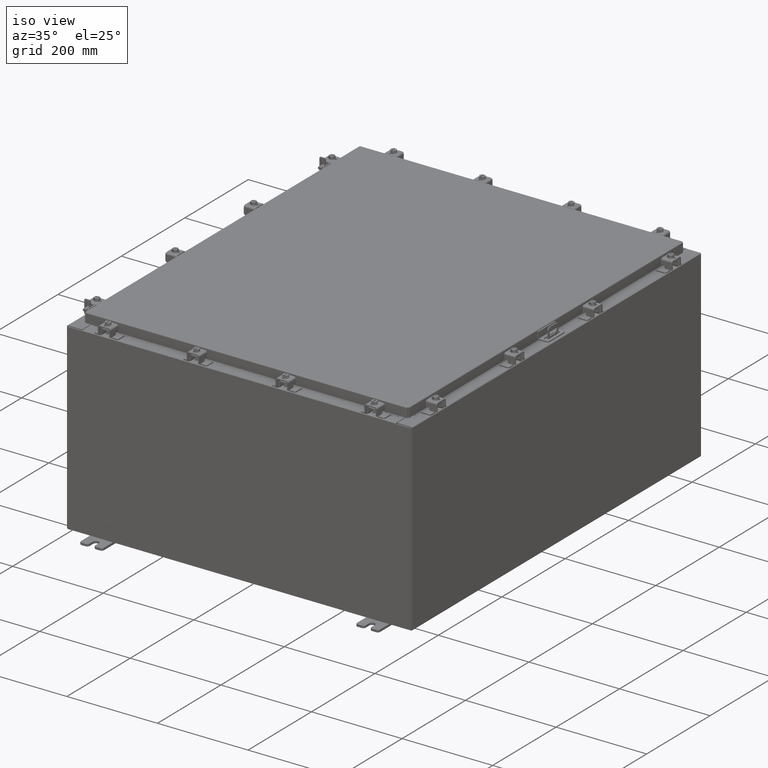
[diagram: clean part render]
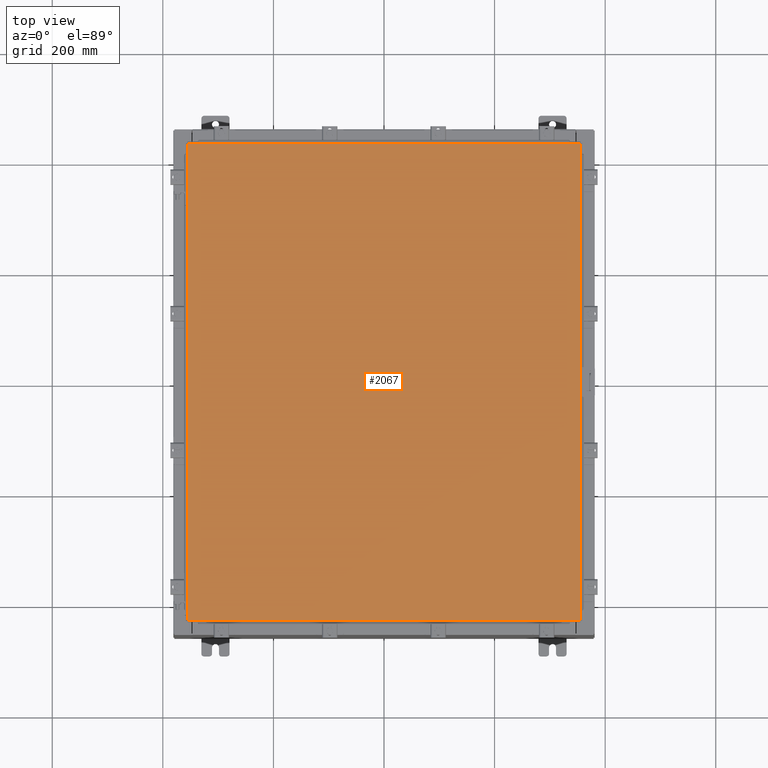
[diagram: tour spotlight — one face highlighted and labeled with its STEP entity id]
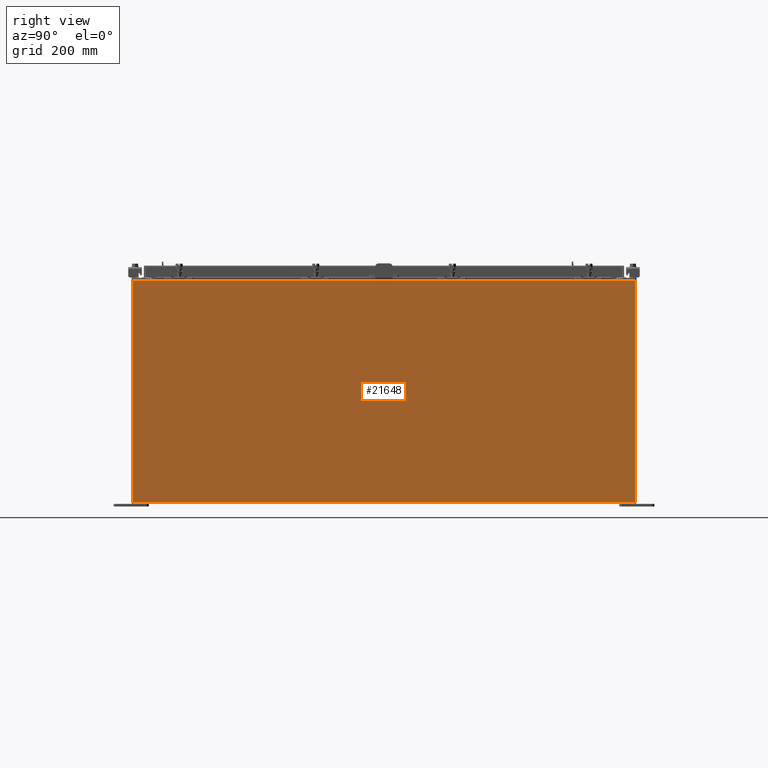
[diagram: tour spotlight — one face highlighted and labeled with its STEP entity id]
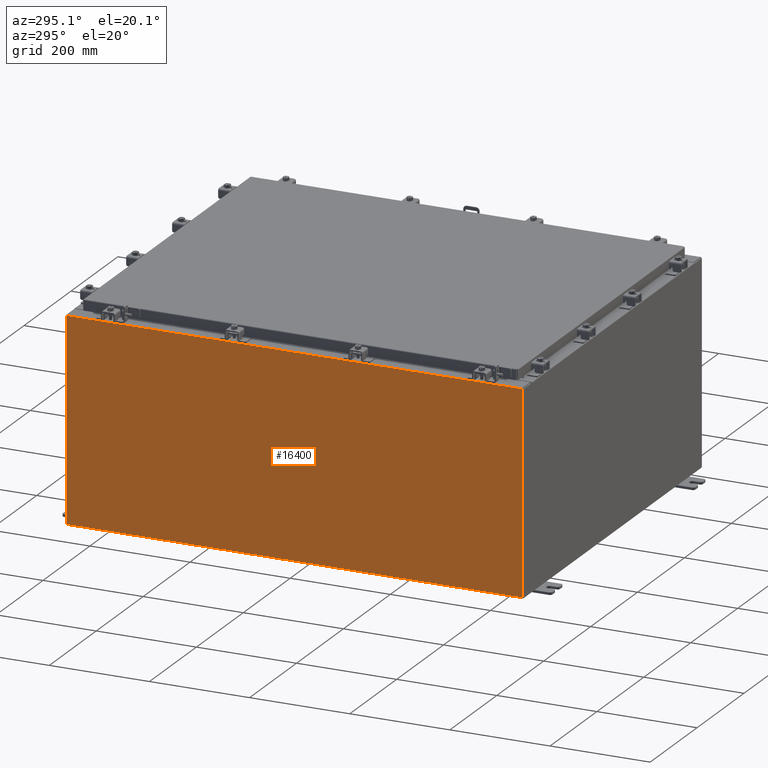
[diagram: tour spotlight — one face highlighted and labeled with its STEP entity id]
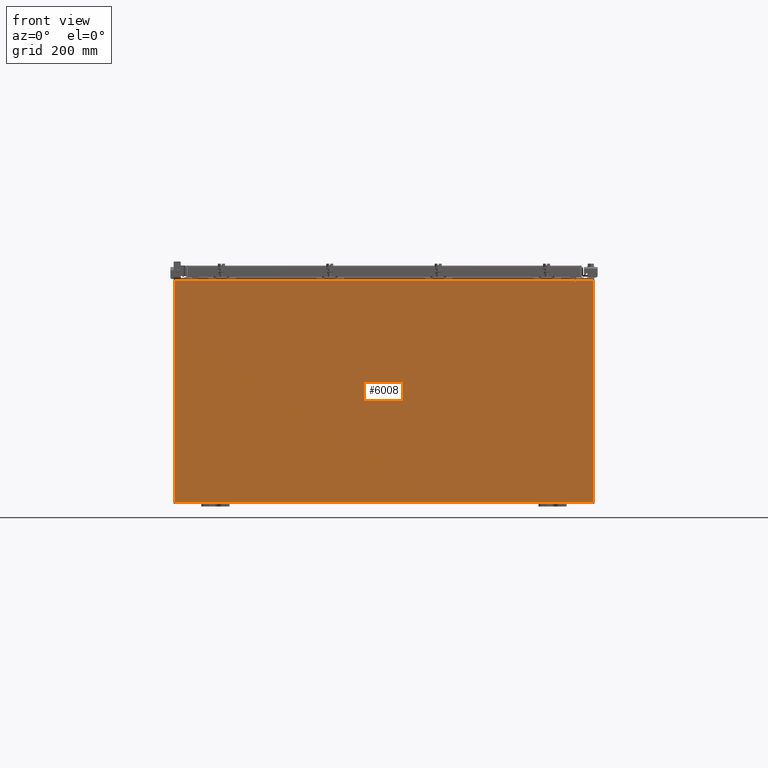
[diagram: tour spotlight — one face highlighted and labeled with its STEP entity id]
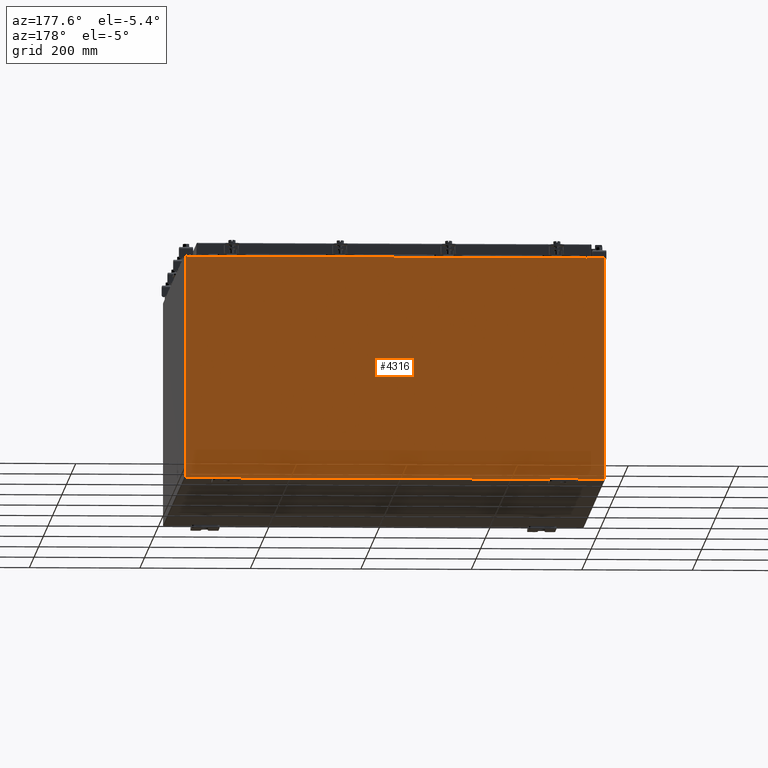
[diagram: tour spotlight — one face highlighted and labeled with its STEP entity id]
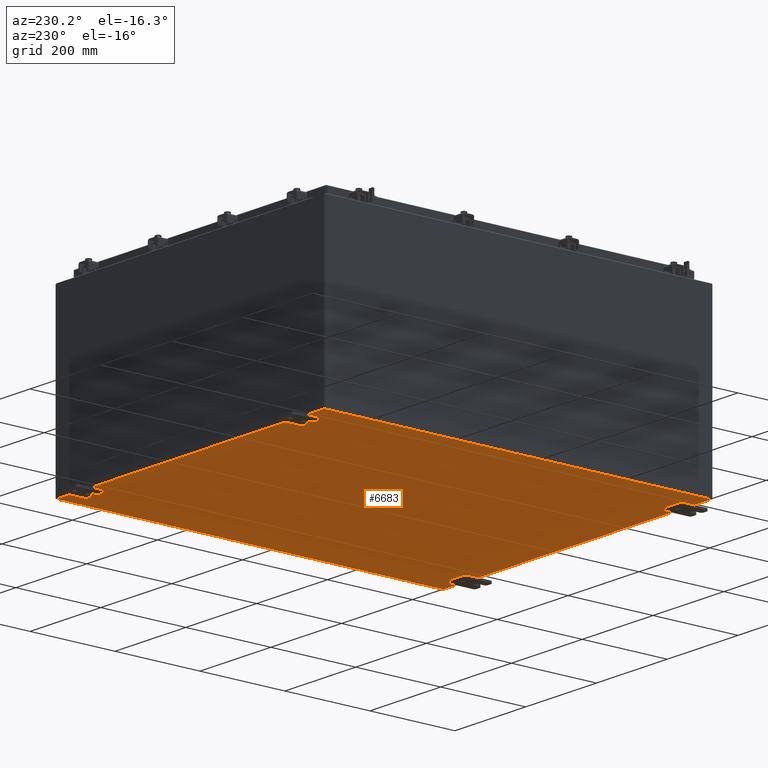
[diagram: tour spotlight — one face highlighted and labeled with its STEP entity id]
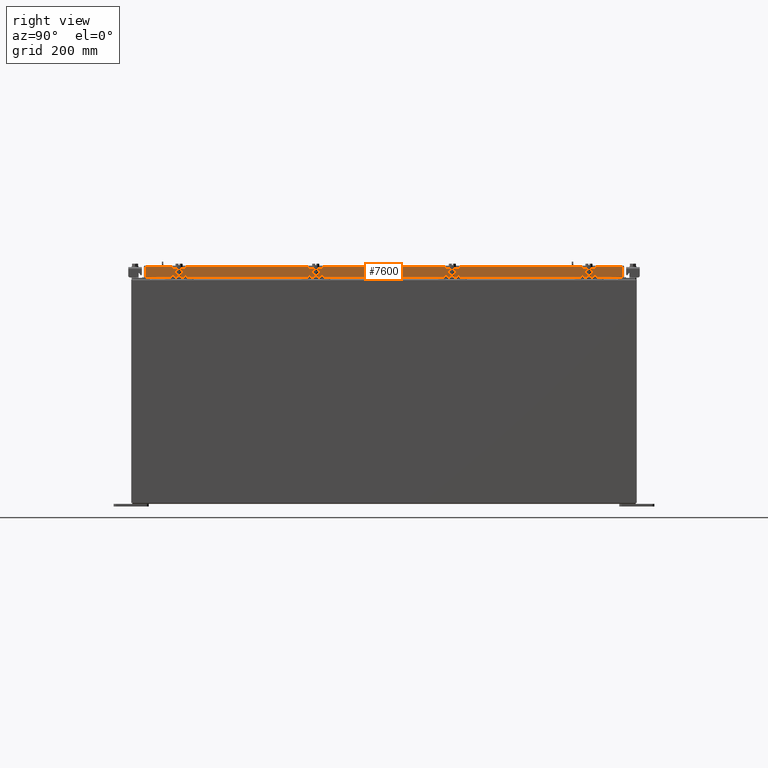
[diagram: tour spotlight — one face highlighted and labeled with its STEP entity id]
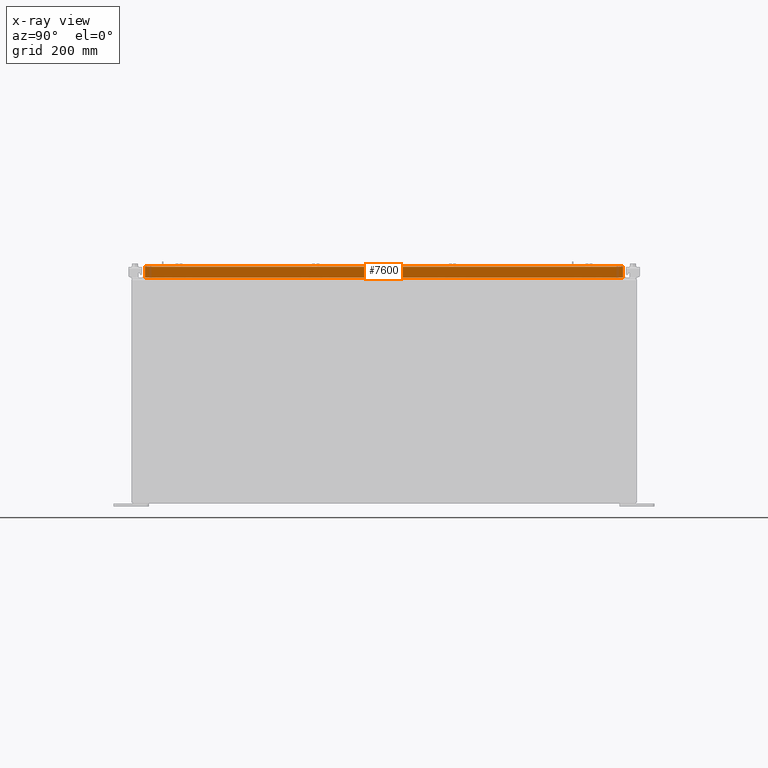
[diagram: x-ray of the same camera — body ghosted, this tour face saturated]
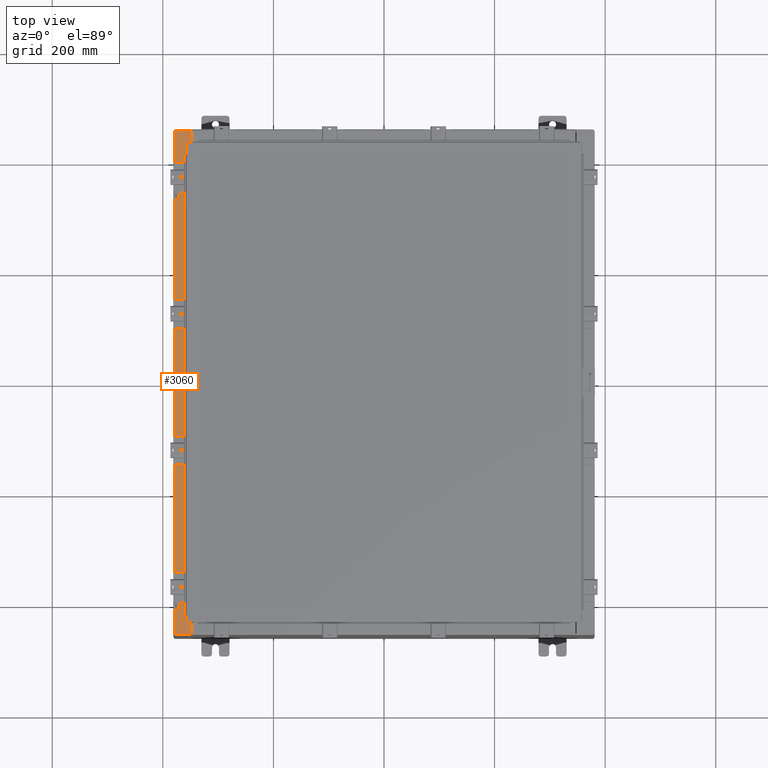
[diagram: tour spotlight — one face highlighted and labeled with its STEP entity id]
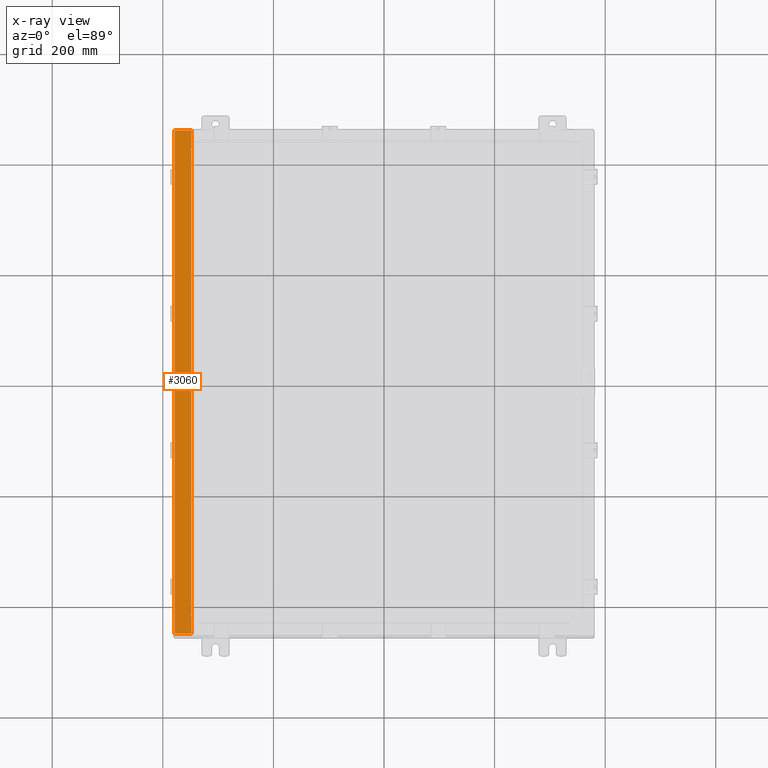
[diagram: x-ray of the same camera — body ghosted, this tour face saturated]
A machine part: a face-by-face anatomy tour. The part has 2594 B-rep faces; the first image is the clean iso view, then the 8 largest visible faces are spotlighted one at a time (largest first), each with its STEP entity span.

Face 1 — top view, entity #2067. In plain terms, the highlighted planar face has unit normal (0, 0, -1).
Definition (entity closure, byte-faithful):
#553 = VECTOR ( 'NONE', #9940, 39.37007874015748100 ) ;
#727 = CARTESIAN_POINT ( 'NONE',  ( 13.99029999999999600, 17.00629999999999600, 8.878505979408856000E-016 ) ) ;
#847 = CARTESIAN_POINT ( 'NONE',  ( 13.99029999999999800, -17.00630000000000700, -2.048885995248197400E-016 ) ) ;
#868 = DIRECTION ( 'NONE',  ( 1.000000000000000000, -0.0000000000000000000, -0.0000000000000000000 ) ) ;
#902 = EDGE_CURVE ( 'NONE', #20600, #9590, #1077, .T. ) ;
#1077 = LINE ( 'NONE', #15552, #20581 ) ;
#1208 = DIRECTION ( 'NONE',  ( 0.0000000000000000000, 0.0000000000000000000, -1.000000000000000000 ) ) ;
#2067 = ADVANCED_FACE ( 'NONE', ( #10502 ), #3058, .F. ) ;
#3058 = PLANE ( 'NONE',  #16236 ) ;
#3523 = ORIENTED_EDGE ( 'NONE', *, *, #9617, .T. ) ;
#5127 = VECTOR ( 'NONE', #868, 39.37007874015748100 ) ;
#8038 = CARTESIAN_POINT ( 'NONE',  ( -13.99030000000000000, 17.00630000000000000, -2.048885995248197400E-016 ) ) ;
#9590 = VERTEX_POINT ( 'NONE', #15628 ) ;
#9617 = EDGE_CURVE ( 'NONE', #9590, #20401, #9937, .T. ) ;
#9937 = LINE ( 'NONE', #727, #19976 ) ;
#9940 = DIRECTION ( 'NONE',  ( 0.0000000000000000000, -1.000000000000000000, 0.0000000000000000000 ) ) ;
#10502 = FACE_OUTER_BOUND ( 'NONE', #12484, .T. ) ;
#10601 = LINE ( 'NONE', #8038, #553 ) ;
#12097 = EDGE_CURVE ( 'NONE', #20701, #20600, #15129, .T. ) ;
#12292 = ORIENTED_EDGE ( 'NONE', *, *, #902, .T. ) ;
#12484 = EDGE_LOOP ( 'NONE', ( #16515, #12292, #3523, #13107 ) ) ;
#12510 = CARTESIAN_POINT ( 'NONE',  ( 0.0000000000000000000, 0.0000000000000000000, 0.0000000000000000000 ) ) ;
#13107 = ORIENTED_EDGE ( 'NONE', *, *, #22933, .T. ) ;
#14417 = DIRECTION ( 'NONE',  ( -1.000000000000000000, 0.0000000000000000000, -0.0000000000000000000 ) ) ;
#15129 = LINE ( 'NONE', #21602, #5127 ) ;
#15552 = CARTESIAN_POINT ( 'NONE',  ( 13.99029999999999800, -17.00630000000000700, -2.048885995248197400E-016 ) ) ;
#15628 = CARTESIAN_POINT ( 'NONE',  ( 13.99029999999999600, 17.00629999999999600, 8.878505979408856000E-016 ) ) ;
#16236 = AXIS2_PLACEMENT_3D ( 'NONE', #12510, #1208, #14417 ) ;
#16515 = ORIENTED_EDGE ( 'NONE', *, *, #12097, .T. ) ;
#19557 = DIRECTION ( 'NONE',  ( -1.000000000000000000, -0.0000000000000000000, -0.0000000000000000000 ) ) ;
#19976 = VECTOR ( 'NONE', #19557, 39.37007874015748100 ) ;
#20401 = VERTEX_POINT ( 'NONE', #21106 ) ;
#20581 = VECTOR ( 'NONE', #23724, 39.37007874015748100 ) ;
#20600 = VERTEX_POINT ( 'NONE', #847 ) ;
#20701 = VERTEX_POINT ( 'NONE', #23767 ) ;
#21106 = CARTESIAN_POINT ( 'NONE',  ( -13.99030000000000000, 17.00630000000000000, -2.048885995248197400E-016 ) ) ;
#21602 = CARTESIAN_POINT ( 'NONE',  ( -13.99029999999999800, -17.00630000000000300, -2.048885995248197400E-016 ) ) ;
#22933 = EDGE_CURVE ( 'NONE', #20401, #20701, #10601, .T. ) ;
#23724 = DIRECTION ( 'NONE',  ( 0.0000000000000000000, 1.000000000000000000, 0.0000000000000000000 ) ) ;
#23767 = CARTESIAN_POINT ( 'NONE',  ( -13.99029999999999800, -17.00630000000000300, -2.048885995248197400E-016 ) ) ;

Face 2 — right view, entity #21648. In plain terms, the highlighted planar face has unit normal (-1, 0, 0).
Definition (entity closure, byte-faithful):
#1788 = VERTEX_POINT ( 'NONE', #2061 ) ;
#1978 = CARTESIAN_POINT ( 'NONE',  ( 15.00000000000005300, 17.92530000000000000, 15.83759999999998600 ) ) ;
#2061 = CARTESIAN_POINT ( 'NONE',  ( 14.99999999999999800, -17.92530000000000000, 0.01300000000000023200 ) ) ;
#3787 = EDGE_CURVE ( 'NONE', #20993, #1788, #13075, .T. ) ;
#5161 = EDGE_CURVE ( 'NONE', #20360, #13152, #7692, .T. ) ;
#5344 = CARTESIAN_POINT ( 'NONE',  ( 14.99999999999999800, -17.92530000000000000, 0.01299999999999984700 ) ) ;
#5392 = ORIENTED_EDGE ( 'NONE', *, *, #3787, .T. ) ;
#5623 = VECTOR ( 'NONE', #7126, 39.37007874015748100 ) ;
#5708 = CARTESIAN_POINT ( 'NONE',  ( 14.99999999999999800, 0.0000000000000000000, -5.172322868739428200E-014 ) ) ;
#7126 = DIRECTION ( 'NONE',  ( 2.091457255054409500E-031, -1.000000000000000000, 6.096072018129156600E-017 ) ) ;
#7692 = LINE ( 'NONE', #20156, #17135 ) ;
#8018 = EDGE_LOOP ( 'NONE', ( #13876, #5392, #19583, #19571 ) ) ;
#9200 = FACE_OUTER_BOUND ( 'NONE', #8018, .T. ) ;
#9495 = PLANE ( 'NONE',  #10987 ) ;
#10032 = LINE ( 'NONE', #5344, #5623 ) ;
#10987 = AXIS2_PLACEMENT_3D ( 'NONE', #5708, #22698, #11367 ) ;
#11317 = CARTESIAN_POINT ( 'NONE',  ( 15.00000000000005300, -17.92530000000000000, 15.83760000000000000 ) ) ;
#11367 = DIRECTION ( 'NONE',  ( 3.430827668758846700E-015, 0.0000000000000000000, 1.000000000000000000 ) ) ;
#12648 = DIRECTION ( 'NONE',  ( -0.0000000000000000000, -1.000000000000000000, -0.0000000000000000000 ) ) ;
#13075 = LINE ( 'NONE', #20966, #17506 ) ;
#13152 = VERTEX_POINT ( 'NONE', #1978 ) ;
#13456 = DIRECTION ( 'NONE',  ( -3.430827668758847500E-015, 0.0000000000000000000, -1.000000000000000000 ) ) ;
#13876 = ORIENTED_EDGE ( 'NONE', *, *, #22138, .T. ) ;
#15340 = VECTOR ( 'NONE', #12648, 39.37007874015748100 ) ;
#15933 = LINE ( 'NONE', #24022, #15340 ) ;
#17135 = VECTOR ( 'NONE', #18256, 39.37007874015748100 ) ;
#17506 = VECTOR ( 'NONE', #13456, 39.37007874015748100 ) ;
#18041 = EDGE_CURVE ( 'NONE', #20360, #1788, #10032, .T. ) ;
#18256 = DIRECTION ( 'NONE',  ( 3.430827668758847500E-015, -1.372331067503538800E-016, 1.000000000000000000 ) ) ;
#19124 = CARTESIAN_POINT ( 'NONE',  ( 14.99999999999999800, 17.92530000000000000, 0.01299999999999766100 ) ) ;
#19571 = ORIENTED_EDGE ( 'NONE', *, *, #5161, .T. ) ;
#19583 = ORIENTED_EDGE ( 'NONE', *, *, #18041, .F. ) ;
#20156 = CARTESIAN_POINT ( 'NONE',  ( 14.99999999999999800, 17.92530000000000000, -4.926328407896216100E-014 ) ) ;
#20360 = VERTEX_POINT ( 'NONE', #19124 ) ;
#20966 = CARTESIAN_POINT ( 'NONE',  ( 14.99999999999999800, -17.92530000000000000, -5.172322868739428200E-014 ) ) ;
#20993 = VERTEX_POINT ( 'NONE', #11317 ) ;
#21648 = ADVANCED_FACE ( 'NONE', ( #9200 ), #9495, .F. ) ;
#22138 = EDGE_CURVE ( 'NONE', #13152, #20993, #15933, .T. ) ;
#22698 = DIRECTION ( 'NONE',  ( -1.000000000000000000, 0.0000000000000000000, 3.430827668758846700E-015 ) ) ;
#24022 = CARTESIAN_POINT ( 'NONE',  ( 15.00000000000005300, 17.92530000000000000, 15.83759999999998600 ) ) ;

Face 3 — auxiliary view, entity #16400. In plain terms, the highlighted planar face has unit normal (1, 0, 0).
Definition (entity closure, byte-faithful):
#170 = DIRECTION ( 'NONE',  ( 3.430827668758847900E-015, 0.0000000000000000000, -1.000000000000000000 ) ) ;
#1493 = VERTEX_POINT ( 'NONE', #21109 ) ;
#1516 = DIRECTION ( 'NONE',  ( 1.000000000000000000, 0.0000000000000000000, 3.430827668758847900E-015 ) ) ;
#1847 = EDGE_CURVE ( 'NONE', #22220, #1493, #15205, .T. ) ;
#3743 = EDGE_CURVE ( 'NONE', #22220, #14315, #13667, .T. ) ;
#4158 = ORIENTED_EDGE ( 'NONE', *, *, #1847, .T. ) ;
#4358 = ORIENTED_EDGE ( 'NONE', *, *, #3743, .F. ) ;
#5899 = ORIENTED_EDGE ( 'NONE', *, *, #16632, .T. ) ;
#6191 = DIRECTION ( 'NONE',  ( -3.430827668758847900E-015, 0.0000000000000000000, 1.000000000000000000 ) ) ;
#6379 = CARTESIAN_POINT ( 'NONE',  ( -15.00000000000005700, 17.92530000000000000, 15.83759999999999500 ) ) ;
#6572 = ORIENTED_EDGE ( 'NONE', *, *, #16162, .T. ) ;
#7766 = CARTESIAN_POINT ( 'NONE',  ( -15.00000000000000400, 17.92530000000000000, 0.01299999999999984700 ) ) ;
#9498 = VECTOR ( 'NONE', #12249, 39.37007874015748100 ) ;
#9983 = CARTESIAN_POINT ( 'NONE',  ( -15.00000000000000400, -17.92530000000000000, -5.172322868739430800E-014 ) ) ;
#10934 = PLANE ( 'NONE',  #18188 ) ;
#11489 = CARTESIAN_POINT ( 'NONE',  ( -15.00000000000000400, 17.92530000000000000, -5.172322868739430800E-014 ) ) ;
#12249 = DIRECTION ( 'NONE',  ( 0.0000000000000000000, 1.000000000000000000, 0.0000000000000000000 ) ) ;
#12820 = CARTESIAN_POINT ( 'NONE',  ( -15.00000000000000400, 0.0000000000000000000, -5.172322868739430800E-014 ) ) ;
#13374 = DIRECTION ( 'NONE',  ( -0.0000000000000000000, 1.000000000000000000, -0.0000000000000000000 ) ) ;
#13447 = VECTOR ( 'NONE', #6191, 39.37007874015748100 ) ;
#13595 = FACE_OUTER_BOUND ( 'NONE', #23098, .T. ) ;
#13667 = LINE ( 'NONE', #7766, #23754 ) ;
#13905 = CARTESIAN_POINT ( 'NONE',  ( -15.00000000000000400, 17.92530000000000000, 0.01299999999999984800 ) ) ;
#14315 = VERTEX_POINT ( 'NONE', #13905 ) ;
#14714 = DIRECTION ( 'NONE',  ( 3.430827668758847900E-015, 0.0000000000000000000, -1.000000000000000000 ) ) ;
#15047 = VERTEX_POINT ( 'NONE', #6379 ) ;
#15054 = LINE ( 'NONE', #11489, #19510 ) ;
#15205 = LINE ( 'NONE', #9983, #13447 ) ;
#16162 = EDGE_CURVE ( 'NONE', #1493, #15047, #17749, .T. ) ;
#16400 = ADVANCED_FACE ( 'NONE', ( #13595 ), #10934, .F. ) ;
#16632 = EDGE_CURVE ( 'NONE', #15047, #14315, #15054, .T. ) ;
#17749 = LINE ( 'NONE', #23599, #9498 ) ;
#18188 = AXIS2_PLACEMENT_3D ( 'NONE', #12820, #1516, #14714 ) ;
#18472 = CARTESIAN_POINT ( 'NONE',  ( -15.00000000000000400, -17.92530000000000000, 0.01299999999999984700 ) ) ;
#19510 = VECTOR ( 'NONE', #170, 39.37007874015748100 ) ;
#21109 = CARTESIAN_POINT ( 'NONE',  ( -15.00000000000005700, -17.92530000000000000, 15.83759999999998200 ) ) ;
#22220 = VERTEX_POINT ( 'NONE', #18472 ) ;
#23098 = EDGE_LOOP ( 'NONE', ( #6572, #5899, #4358, #4158 ) ) ;
#23599 = CARTESIAN_POINT ( 'NONE',  ( -15.00000000000005700, -17.92530000000000000, 15.83759999999998200 ) ) ;
#23754 = VECTOR ( 'NONE', #13374, 39.37007874015748100 ) ;

Face 4 — front view, entity #6008. In plain terms, the highlighted planar face has unit normal (-0, 1, -0).
Definition (entity closure, byte-faithful):
#286 = CARTESIAN_POINT ( 'NONE',  ( -14.92529999999999800, 0.0000000000000000000, 7.925300000000000000 ) ) ;
#458 = LINE ( 'NONE', #23840, #19964 ) ;
#637 = CIRCLE ( 'NONE', #11225, 0.01867499999999949400 ) ;
#656 = DIRECTION ( 'NONE',  ( -0.0000000000000000000, 1.000000000000000000, -0.0000000000000000000 ) ) ;
#683 = DIRECTION ( 'NONE',  ( -4.340572780400193600E-014, 0.0000000000000000000, -1.000000000000000000 ) ) ;
#766 = CARTESIAN_POINT ( 'NONE',  ( -14.92529999999999800, 0.0000000000000000000, 7.925300000000000000 ) ) ;
#881 = CARTESIAN_POINT ( 'NONE',  ( -14.92529999999999800, 0.0000000000000000000, -7.925300000000000000 ) ) ;
#1417 = EDGE_CURVE ( 'NONE', #11167, #5001, #21166, .T. ) ;
#1852 = ORIENTED_EDGE ( 'NONE', *, *, #20570, .T. ) ;
#1896 = CARTESIAN_POINT ( 'NONE',  ( 14.92530000000000200, 0.0000000000000000000, 7.925299999999997300 ) ) ;
#1907 = EDGE_LOOP ( 'NONE', ( #3509, #9014, #22783, #6160, #9936, #4797, #9709, #3630, #4198, #6312, #1852, #18148 ) ) ;
#1947 = EDGE_CURVE ( 'NONE', #20055, #15922, #12261, .T. ) ;
#2198 = LINE ( 'NONE', #20530, #11052 ) ;
#2289 = CARTESIAN_POINT ( 'NONE',  ( -14.92529999999999800, 0.0000000000000000000, 7.925300000000000000 ) ) ;
#2406 = VERTEX_POINT ( 'NONE', #286 ) ;
#2618 = LINE ( 'NONE', #7186, #22118 ) ;
#2849 = CARTESIAN_POINT ( 'NONE',  ( -13.67454999999999500, 0.0000000000000000000, 7.925300000000000000 ) ) ;
#3450 = VECTOR ( 'NONE', #19685, 39.37007874015748100 ) ;
#3509 = ORIENTED_EDGE ( 'NONE', *, *, #1417, .F. ) ;
#3630 = ORIENTED_EDGE ( 'NONE', *, *, #24325, .T. ) ;
#4198 = ORIENTED_EDGE ( 'NONE', *, *, #12214, .T. ) ;
#4311 = DIRECTION ( 'NONE',  ( 1.000000000000000000, 0.0000000000000000000, -7.321388497823864400E-017 ) ) ;
#4384 = LINE ( 'NONE', #17547, #23877 ) ;
#4427 = EDGE_CURVE ( 'NONE', #10218, #11167, #637, .T. ) ;
#4671 = VECTOR ( 'NONE', #4311, 39.37007874015748100 ) ;
#4797 = ORIENTED_EDGE ( 'NONE', *, *, #7551, .F. ) ;
#5001 = VERTEX_POINT ( 'NONE', #2849 ) ;
#5584 = VERTEX_POINT ( 'NONE', #19485 ) ;
#5702 = DIRECTION ( 'NONE',  ( 0.0000000000000000000, -0.0000000000000000000, -1.000000000000000000 ) ) ;
#6008 = ADVANCED_FACE ( 'NONE', ( #23668 ), #20694, .F. ) ;
#6160 = ORIENTED_EDGE ( 'NONE', *, *, #18743, .T. ) ;
#6312 = ORIENTED_EDGE ( 'NONE', *, *, #19704, .T. ) ;
#6862 = AXIS2_PLACEMENT_3D ( 'NONE', #11957, #656, #13858 ) ;
#7186 = CARTESIAN_POINT ( 'NONE',  ( -13.63719999999999800, 3.756290991288361700E-016, 7.912300000000006300 ) ) ;
#7250 = VECTOR ( 'NONE', #23472, 39.37007874015748100 ) ;
#7551 = EDGE_CURVE ( 'NONE', #17199, #20055, #18889, .T. ) ;
#7936 = AXIS2_PLACEMENT_3D ( 'NONE', #13176, #16965, #5702 ) ;
#8445 = LINE ( 'NONE', #766, #3450 ) ;
#8629 = CARTESIAN_POINT ( 'NONE',  ( 14.92530000000000200, 0.0000000000000000000, 7.925299999999997300 ) ) ;
#8896 = CARTESIAN_POINT ( 'NONE',  ( 13.67455000000000400, 0.0000000000000000000, 7.925299999999997300 ) ) ;
#8943 = LINE ( 'NONE', #8629, #17803 ) ;
#9014 = ORIENTED_EDGE ( 'NONE', *, *, #4427, .F. ) ;
#9434 = LINE ( 'NONE', #13887, #18880 ) ;
#9681 = VERTEX_POINT ( 'NONE', #881 ) ;
#9709 = ORIENTED_EDGE ( 'NONE', *, *, #23023, .F. ) ;
#9936 = ORIENTED_EDGE ( 'NONE', *, *, #1947, .F. ) ;
#10115 = DIRECTION ( 'NONE',  ( -1.000000000000000000, -0.0000000000000000000, -0.0000000000000000000 ) ) ;
#10136 = CARTESIAN_POINT ( 'NONE',  ( -13.65587499999999600, 0.0000000000000000000, 7.874949999999999200 ) ) ;
#10218 = VERTEX_POINT ( 'NONE', #15593 ) ;
#10224 = CARTESIAN_POINT ( 'NONE',  ( 13.63720000000000400, 0.0000000000000000000, 0.0000000000000000000 ) ) ;
#10457 = CARTESIAN_POINT ( 'NONE',  ( 13.63720000000000400, 0.0000000000000000000, 7.874949999999999200 ) ) ;
#10628 = CARTESIAN_POINT ( 'NONE',  ( -13.63719999999999600, 3.756290991288361700E-016, 7.912300000000006300 ) ) ;
#11052 = VECTOR ( 'NONE', #14906, 39.37007874015748100 ) ;
#11167 = VERTEX_POINT ( 'NONE', #20484 ) ;
#11225 = AXIS2_PLACEMENT_3D ( 'NONE', #10136, #23356, #12004 ) ;
#11957 = CARTESIAN_POINT ( 'NONE',  ( 13.65587500000000200, 0.0000000000000000000, 7.874949999999999200 ) ) ;
#12004 = DIRECTION ( 'NONE',  ( 0.0000000000000000000, 0.0000000000000000000, -1.000000000000000000 ) ) ;
#12214 = EDGE_CURVE ( 'NONE', #15322, #5584, #8943, .T. ) ;
#12261 = LINE ( 'NONE', #10224, #7250 ) ;
#13176 = CARTESIAN_POINT ( 'NONE',  ( 0.0000000000000000000, 0.0000000000000000000, 0.0000000000000000000 ) ) ;
#13501 = CARTESIAN_POINT ( 'NONE',  ( 13.63720000000000400, 0.0000000000000000000, 7.912299999999999200 ) ) ;
#13858 = DIRECTION ( 'NONE',  ( 0.0000000000000000000, 0.0000000000000000000, -1.000000000000000000 ) ) ;
#13887 = CARTESIAN_POINT ( 'NONE',  ( 13.67454999999966100, -0.0000000000000000000, -5.935537951421999000E-013 ) ) ;
#14009 = EDGE_CURVE ( 'NONE', #15619, #10218, #2198, .T. ) ;
#14384 = DIRECTION ( 'NONE',  ( 1.000000000000000000, 0.0000000000000000000, -7.321388497823864400E-017 ) ) ;
#14906 = DIRECTION ( 'NONE',  ( 0.0000000000000000000, 0.0000000000000000000, -1.000000000000000000 ) ) ;
#15322 = VERTEX_POINT ( 'NONE', #1896 ) ;
#15593 = CARTESIAN_POINT ( 'NONE',  ( -13.63719999999999600, -0.0000000000000000000, 7.874949999999999200 ) ) ;
#15619 = VERTEX_POINT ( 'NONE', #10628 ) ;
#15872 = CARTESIAN_POINT ( 'NONE',  ( 13.67455000000000200, 0.0000000000000000000, 7.874949999999999200 ) ) ;
#15922 = VERTEX_POINT ( 'NONE', #13501 ) ;
#16365 = CARTESIAN_POINT ( 'NONE',  ( -13.67454999999999500, -0.0000000000000000000, 0.0000000000000000000 ) ) ;
#16708 = VECTOR ( 'NONE', #18288, 39.37007874015748100 ) ;
#16965 = DIRECTION ( 'NONE',  ( 0.0000000000000000000, -1.000000000000000000, 0.0000000000000000000 ) ) ;
#17199 = VERTEX_POINT ( 'NONE', #15872 ) ;
#17547 = CARTESIAN_POINT ( 'NONE',  ( -14.92529999999999800, 0.0000000000000000000, -7.925300000000000000 ) ) ;
#17803 = VECTOR ( 'NONE', #23786, 39.37007874015748100 ) ;
#18148 = ORIENTED_EDGE ( 'NONE', *, *, #20739, .T. ) ;
#18288 = DIRECTION ( 'NONE',  ( 0.0000000000000000000, 0.0000000000000000000, 1.000000000000000000 ) ) ;
#18743 = EDGE_CURVE ( 'NONE', #15619, #15922, #2618, .T. ) ;
#18880 = VECTOR ( 'NONE', #683, 39.37007874015748100 ) ;
#18889 = CIRCLE ( 'NONE', #6862, 0.01867499999999949400 ) ;
#19485 = CARTESIAN_POINT ( 'NONE',  ( 14.92530000000000200, 0.0000000000000000000, -7.925300000000000000 ) ) ;
#19685 = DIRECTION ( 'NONE',  ( -0.0000000000000000000, -0.0000000000000000000, 1.000000000000000000 ) ) ;
#19704 = EDGE_CURVE ( 'NONE', #5584, #9681, #4384, .T. ) ;
#19707 = LINE ( 'NONE', #2289, #4671 ) ;
#19964 = VECTOR ( 'NONE', #14384, 39.37007874015748100 ) ;
#20055 = VERTEX_POINT ( 'NONE', #10457 ) ;
#20484 = CARTESIAN_POINT ( 'NONE',  ( -13.67454999999999500, 0.0000000000000000000, 7.874949999999999200 ) ) ;
#20530 = CARTESIAN_POINT ( 'NONE',  ( -13.63719999999999600, -0.0000000000000000000, 0.0000000000000000000 ) ) ;
#20570 = EDGE_CURVE ( 'NONE', #9681, #2406, #8445, .T. ) ;
#20694 = PLANE ( 'NONE',  #7936 ) ;
#20739 = EDGE_CURVE ( 'NONE', #2406, #5001, #458, .T. ) ;
#21166 = LINE ( 'NONE', #16365, #16708 ) ;
#22118 = VECTOR ( 'NONE', #22312, 39.37007874015748100 ) ;
#22312 = DIRECTION ( 'NONE',  ( 1.000000000000000000, 0.0000000000000000000, 0.0000000000000000000 ) ) ;
#22783 = ORIENTED_EDGE ( 'NONE', *, *, #14009, .F. ) ;
#23023 = EDGE_CURVE ( 'NONE', #23921, #17199, #9434, .T. ) ;
#23356 = DIRECTION ( 'NONE',  ( -0.0000000000000000000, 1.000000000000000000, -0.0000000000000000000 ) ) ;
#23472 = DIRECTION ( 'NONE',  ( 0.0000000000000000000, 0.0000000000000000000, 1.000000000000000000 ) ) ;
#23668 = FACE_OUTER_BOUND ( 'NONE', #1907, .T. ) ;
#23786 = DIRECTION ( 'NONE',  ( 0.0000000000000000000, 0.0000000000000000000, -1.000000000000000000 ) ) ;
#23840 = CARTESIAN_POINT ( 'NONE',  ( -14.92529999999999800, 0.0000000000000000000, 7.925300000000000000 ) ) ;
#23877 = VECTOR ( 'NONE', #10115, 39.37007874015748100 ) ;
#23921 = VERTEX_POINT ( 'NONE', #8896 ) ;
#24325 = EDGE_CURVE ( 'NONE', #23921, #15322, #19707, .T. ) ;

Face 5 — auxiliary view, entity #4316. In plain terms, the highlighted planar face has unit normal (0, -1, 0).
Definition (entity closure, byte-faithful):
#17 = EDGE_CURVE ( 'NONE', #19939, #15513, #2605, .T. ) ;
#165 = CARTESIAN_POINT ( 'NONE',  ( 14.92530000000000200, 0.0000000000000000000, 7.925299999999997300 ) ) ;
#771 = VERTEX_POINT ( 'NONE', #20286 ) ;
#949 = ORIENTED_EDGE ( 'NONE', *, *, #14084, .T. ) ;
#1876 = CARTESIAN_POINT ( 'NONE',  ( -13.67454999999999500, -0.0000000000000000000, 0.0000000000000000000 ) ) ;
#1930 = ORIENTED_EDGE ( 'NONE', *, *, #8935, .T. ) ;
#2605 = LINE ( 'NONE', #7148, #22103 ) ;
#3025 = FACE_OUTER_BOUND ( 'NONE', #11055, .T. ) ;
#3327 = EDGE_CURVE ( 'NONE', #12950, #771, #20776, .T. ) ;
#3435 = EDGE_CURVE ( 'NONE', #4441, #18513, #14566, .T. ) ;
#3612 = VECTOR ( 'NONE', #22690, 39.37007874015748100 ) ;
#3669 = AXIS2_PLACEMENT_3D ( 'NONE', #15381, #4141, #17314 ) ;
#3795 = CARTESIAN_POINT ( 'NONE',  ( -13.63719999999999800, 3.756290991288361700E-016, 7.912300000000006300 ) ) ;
#4141 = DIRECTION ( 'NONE',  ( 0.0000000000000000000, -1.000000000000000000, 0.0000000000000000000 ) ) ;
#4193 = ORIENTED_EDGE ( 'NONE', *, *, #15830, .T. ) ;
#4316 = ADVANCED_FACE ( 'NONE', ( #3025 ), #5703, .F. ) ;
#4441 = VERTEX_POINT ( 'NONE', #17560 ) ;
#4871 = LINE ( 'NONE', #11351, #9877 ) ;
#5009 = EDGE_CURVE ( 'NONE', #15025, #6449, #5662, .T. ) ;
#5662 = LINE ( 'NONE', #6643, #20111 ) ;
#5686 = ORIENTED_EDGE ( 'NONE', *, *, #5009, .F. ) ;
#5703 = PLANE ( 'NONE',  #3669 ) ;
#6320 = VECTOR ( 'NONE', #21815, 39.37007874015748100 ) ;
#6449 = VERTEX_POINT ( 'NONE', #21929 ) ;
#6643 = CARTESIAN_POINT ( 'NONE',  ( 13.63720000000000400, 0.0000000000000000000, 0.0000000000000000000 ) ) ;
#7026 = CARTESIAN_POINT ( 'NONE',  ( 14.92530000000000200, 0.0000000000000000000, -7.925300000000000000 ) ) ;
#7148 = CARTESIAN_POINT ( 'NONE',  ( -13.63719999999999600, -0.0000000000000000000, 0.0000000000000000000 ) ) ;
#7365 = VECTOR ( 'NONE', #22958, 39.37007874015748100 ) ;
#7571 = ORIENTED_EDGE ( 'NONE', *, *, #17026, .T. ) ;
#7892 = VECTOR ( 'NONE', #21308, 39.37007874015748100 ) ;
#8096 = CARTESIAN_POINT ( 'NONE',  ( -14.92529999999999800, 0.0000000000000000000, 7.925300000000000000 ) ) ;
#8356 = CARTESIAN_POINT ( 'NONE',  ( -13.67454999999999500, 0.0000000000000000000, 7.874949999999999200 ) ) ;
#8595 = LINE ( 'NONE', #3795, #3612 ) ;
#8600 = CARTESIAN_POINT ( 'NONE',  ( -14.92529999999999800, 0.0000000000000000000, -7.925300000000000000 ) ) ;
#8841 = DIRECTION ( 'NONE',  ( -4.340572780400193600E-014, 0.0000000000000000000, -1.000000000000000000 ) ) ;
#8935 = EDGE_CURVE ( 'NONE', #14895, #22764, #22980, .T. ) ;
#9163 = LINE ( 'NONE', #9729, #7365 ) ;
#9316 = DIRECTION ( 'NONE',  ( -0.0000000000000000000, 1.000000000000000000, -0.0000000000000000000 ) ) ;
#9729 = CARTESIAN_POINT ( 'NONE',  ( 14.92530000000000200, 0.0000000000000000000, 7.925299999999997300 ) ) ;
#9769 = DIRECTION ( 'NONE',  ( -0.0000000000000000000, 1.000000000000000000, -0.0000000000000000000 ) ) ;
#9877 = VECTOR ( 'NONE', #20772, 39.37007874015748100 ) ;
#9978 = EDGE_CURVE ( 'NONE', #15513, #16861, #12864, .T. ) ;
#10137 = CARTESIAN_POINT ( 'NONE',  ( -13.63719999999999600, 3.756290991288361700E-016, 7.912300000000006300 ) ) ;
#10756 = CARTESIAN_POINT ( 'NONE',  ( -13.67454999999999500, 0.0000000000000000000, 7.925300000000000000 ) ) ;
#11038 = EDGE_CURVE ( 'NONE', #4441, #14825, #24085, .T. ) ;
#11055 = EDGE_LOOP ( 'NONE', ( #15707, #12650, #15885, #4193, #5686, #14849, #24331, #18623, #7571, #17676, #949, #1930 ) ) ;
#11351 = CARTESIAN_POINT ( 'NONE',  ( -14.92529999999999800, 0.0000000000000000000, 7.925300000000000000 ) ) ;
#12650 = ORIENTED_EDGE ( 'NONE', *, *, #9978, .F. ) ;
#12864 = CIRCLE ( 'NONE', #22076, 0.01867499999999949400 ) ;
#12950 = VERTEX_POINT ( 'NONE', #7026 ) ;
#13169 = DIRECTION ( 'NONE',  ( 0.0000000000000000000, 0.0000000000000000000, 1.000000000000000000 ) ) ;
#14069 = EDGE_CURVE ( 'NONE', #16861, #22764, #20498, .T. ) ;
#14084 = EDGE_CURVE ( 'NONE', #771, #14895, #4871, .T. ) ;
#14543 = CARTESIAN_POINT ( 'NONE',  ( 13.67454999999966100, -0.0000000000000000000, -5.935537951421999000E-013 ) ) ;
#14566 = LINE ( 'NONE', #14543, #19016 ) ;
#14593 = VECTOR ( 'NONE', #23895, 39.37007874015748100 ) ;
#14825 = VERTEX_POINT ( 'NONE', #165 ) ;
#14849 = ORIENTED_EDGE ( 'NONE', *, *, #18295, .F. ) ;
#14879 = VECTOR ( 'NONE', #13169, 39.37007874015748100 ) ;
#14895 = VERTEX_POINT ( 'NONE', #19180 ) ;
#15025 = VERTEX_POINT ( 'NONE', #23400 ) ;
#15308 = CIRCLE ( 'NONE', #21702, 0.01867499999999949400 ) ;
#15381 = CARTESIAN_POINT ( 'NONE',  ( 0.0000000000000000000, 0.0000000000000000000, 0.0000000000000000000 ) ) ;
#15513 = VERTEX_POINT ( 'NONE', #23470 ) ;
#15707 = ORIENTED_EDGE ( 'NONE', *, *, #14069, .F. ) ;
#15830 = EDGE_CURVE ( 'NONE', #19939, #6449, #8595, .T. ) ;
#15885 = ORIENTED_EDGE ( 'NONE', *, *, #17, .F. ) ;
#16016 = DIRECTION ( 'NONE',  ( 0.0000000000000000000, 0.0000000000000000000, 1.000000000000000000 ) ) ;
#16861 = VERTEX_POINT ( 'NONE', #8356 ) ;
#17026 = EDGE_CURVE ( 'NONE', #14825, #12950, #9163, .T. ) ;
#17314 = DIRECTION ( 'NONE',  ( 0.0000000000000000000, -0.0000000000000000000, -1.000000000000000000 ) ) ;
#17560 = CARTESIAN_POINT ( 'NONE',  ( 13.67455000000000400, 0.0000000000000000000, 7.925299999999997300 ) ) ;
#17676 = ORIENTED_EDGE ( 'NONE', *, *, #3327, .T. ) ;
#17759 = CARTESIAN_POINT ( 'NONE',  ( 13.67455000000000200, 0.0000000000000000000, 7.874949999999999200 ) ) ;
#18295 = EDGE_CURVE ( 'NONE', #18513, #15025, #15308, .T. ) ;
#18513 = VERTEX_POINT ( 'NONE', #17759 ) ;
#18623 = ORIENTED_EDGE ( 'NONE', *, *, #11038, .T. ) ;
#19016 = VECTOR ( 'NONE', #8841, 39.37007874015748100 ) ;
#19180 = CARTESIAN_POINT ( 'NONE',  ( -14.92529999999999800, 0.0000000000000000000, 7.925300000000000000 ) ) ;
#19939 = VERTEX_POINT ( 'NONE', #10137 ) ;
#20070 = CARTESIAN_POINT ( 'NONE',  ( -14.92529999999999800, 0.0000000000000000000, 7.925300000000000000 ) ) ;
#20111 = VECTOR ( 'NONE', #16016, 39.37007874015748100 ) ;
#20286 = CARTESIAN_POINT ( 'NONE',  ( -14.92529999999999800, 0.0000000000000000000, -7.925300000000000000 ) ) ;
#20498 = LINE ( 'NONE', #1876, #14879 ) ;
#20597 = CARTESIAN_POINT ( 'NONE',  ( -13.65587499999999600, 0.0000000000000000000, 7.874949999999999200 ) ) ;
#20772 = DIRECTION ( 'NONE',  ( -0.0000000000000000000, -0.0000000000000000000, 1.000000000000000000 ) ) ;
#20776 = LINE ( 'NONE', #8600, #6320 ) ;
#21080 = CARTESIAN_POINT ( 'NONE',  ( 13.65587500000000200, 0.0000000000000000000, 7.874949999999999200 ) ) ;
#21308 = DIRECTION ( 'NONE',  ( 1.000000000000000000, 0.0000000000000000000, -7.321388497823864400E-017 ) ) ;
#21702 = AXIS2_PLACEMENT_3D ( 'NONE', #21080, #9769, #22987 ) ;
#21815 = DIRECTION ( 'NONE',  ( -1.000000000000000000, -0.0000000000000000000, -0.0000000000000000000 ) ) ;
#21929 = CARTESIAN_POINT ( 'NONE',  ( 13.63720000000000400, 0.0000000000000000000, 7.912299999999999200 ) ) ;
#22076 = AXIS2_PLACEMENT_3D ( 'NONE', #20597, #9316, #22524 ) ;
#22103 = VECTOR ( 'NONE', #24492, 39.37007874015748100 ) ;
#22524 = DIRECTION ( 'NONE',  ( 0.0000000000000000000, 0.0000000000000000000, -1.000000000000000000 ) ) ;
#22690 = DIRECTION ( 'NONE',  ( 1.000000000000000000, 0.0000000000000000000, 0.0000000000000000000 ) ) ;
#22764 = VERTEX_POINT ( 'NONE', #10756 ) ;
#22958 = DIRECTION ( 'NONE',  ( 0.0000000000000000000, 0.0000000000000000000, -1.000000000000000000 ) ) ;
#22980 = LINE ( 'NONE', #8096, #7892 ) ;
#22987 = DIRECTION ( 'NONE',  ( 0.0000000000000000000, 0.0000000000000000000, -1.000000000000000000 ) ) ;
#23400 = CARTESIAN_POINT ( 'NONE',  ( 13.63720000000000400, 0.0000000000000000000, 7.874949999999999200 ) ) ;
#23470 = CARTESIAN_POINT ( 'NONE',  ( -13.63719999999999600, -0.0000000000000000000, 7.874949999999999200 ) ) ;
#23895 = DIRECTION ( 'NONE',  ( 1.000000000000000000, 0.0000000000000000000, -7.321388497823864400E-017 ) ) ;
#24085 = LINE ( 'NONE', #20070, #14593 ) ;
#24331 = ORIENTED_EDGE ( 'NONE', *, *, #3435, .F. ) ;
#24492 = DIRECTION ( 'NONE',  ( 0.0000000000000000000, 0.0000000000000000000, -1.000000000000000000 ) ) ;

Face 6 — auxiliary view, entity #6683. In plain terms, the highlighted planar face has unit normal (0, 0, -1).
Definition (entity closure, byte-faithful):
#235 = CARTESIAN_POINT ( 'NONE',  ( 14.91229999999999800, 17.92530000000000000, -0.07470000000000251400 ) ) ;
#266 = DIRECTION ( 'NONE',  ( -1.000000000000000000, 0.0000000000000000000, -0.0000000000000000000 ) ) ;
#943 = CARTESIAN_POINT ( 'NONE',  ( -15.00000000000000400, -17.92530000000000000, -0.07470000000000000300 ) ) ;
#1419 = ORIENTED_EDGE ( 'NONE', *, *, #17797, .F. ) ;
#1520 = EDGE_CURVE ( 'NONE', #11286, #17792, #19390, .T. ) ;
#1742 = ORIENTED_EDGE ( 'NONE', *, *, #1520, .T. ) ;
#2081 = CARTESIAN_POINT ( 'NONE',  ( -15.00000000000000400, 17.92530000000000000, -0.07470000000000000300 ) ) ;
#2946 = EDGE_LOOP ( 'NONE', ( #1419, #1742, #17406, #17737 ) ) ;
#3000 = CARTESIAN_POINT ( 'NONE',  ( 14.91229999999999800, 17.92530000000000000, -0.07470000000000251400 ) ) ;
#3011 = CARTESIAN_POINT ( 'NONE',  ( 14.91229999999999800, -17.92530000000000000, -0.07470000000000000300 ) ) ;
#4016 = DIRECTION ( 'NONE',  ( -1.000000000000000000, -0.0000000000000000000, -0.0000000000000000000 ) ) ;
#4037 = DIRECTION ( 'NONE',  ( 0.0000000000000000000, 0.0000000000000000000, -1.000000000000000000 ) ) ;
#4353 = VECTOR ( 'NONE', #22367, 39.37007874015748100 ) ;
#4756 = LINE ( 'NONE', #943, #23660 ) ;
#6574 = DIRECTION ( 'NONE',  ( 1.000000000000000000, 0.0000000000000000000, 0.0000000000000000000 ) ) ;
#6683 = ADVANCED_FACE ( 'NONE', ( #21247 ), #22928, .T. ) ;
#7403 = EDGE_CURVE ( 'NONE', #12834, #8426, #11195, .T. ) ;
#7800 = CARTESIAN_POINT ( 'NONE',  ( 0.0000000000000000000, 0.0000000000000000000, -0.07470000000000000300 ) ) ;
#8426 = VERTEX_POINT ( 'NONE', #3011 ) ;
#11195 = LINE ( 'NONE', #235, #21253 ) ;
#11286 = VERTEX_POINT ( 'NONE', #22979 ) ;
#11299 = LINE ( 'NONE', #2081, #15704 ) ;
#12248 = CARTESIAN_POINT ( 'NONE',  ( -14.91230000000000200, 17.92530000000000000, -0.07470000000000000300 ) ) ;
#12834 = VERTEX_POINT ( 'NONE', #3000 ) ;
#14819 = EDGE_CURVE ( 'NONE', #12834, #17792, #11299, .T. ) ;
#15704 = VECTOR ( 'NONE', #4016, 39.37007874015748100 ) ;
#17406 = ORIENTED_EDGE ( 'NONE', *, *, #14819, .F. ) ;
#17737 = ORIENTED_EDGE ( 'NONE', *, *, #7403, .T. ) ;
#17792 = VERTEX_POINT ( 'NONE', #12248 ) ;
#17797 = EDGE_CURVE ( 'NONE', #11286, #8426, #4756, .T. ) ;
#19390 = LINE ( 'NONE', #23968, #4353 ) ;
#20903 = AXIS2_PLACEMENT_3D ( 'NONE', #7800, #4037, #266 ) ;
#20972 = DIRECTION ( 'NONE',  ( -0.0000000000000000000, -1.000000000000000000, 8.208677865577646300E-017 ) ) ;
#21247 = FACE_OUTER_BOUND ( 'NONE', #2946, .T. ) ;
#21253 = VECTOR ( 'NONE', #20972, 39.37007874015748100 ) ;
#22367 = DIRECTION ( 'NONE',  ( -0.0000000000000000000, 1.000000000000000000, -0.0000000000000000000 ) ) ;
#22928 = PLANE ( 'NONE',  #20903 ) ;
#22979 = CARTESIAN_POINT ( 'NONE',  ( -14.91230000000000200, -17.92530000000000000, -0.07469999999999994700 ) ) ;
#23660 = VECTOR ( 'NONE', #6574, 39.37007874015748100 ) ;
#23968 = CARTESIAN_POINT ( 'NONE',  ( -14.91230000000000200, -17.92530000000000000, -0.07469999999999994700 ) ) ;

Face 7 — right view, entity #7600. An x-ray twin of the same camera follows (body ghosted, this face saturated) — the face is partly hidden behind the body. In plain terms, the highlighted planar face has unit normal (1, 0, 0).
Definition (entity closure, byte-faithful):
#297 = LINE ( 'NONE', #24223, #10358 ) ;
#1102 = EDGE_CURVE ( 'NONE', #22164, #20641, #1964, .T. ) ;
#1207 = DIRECTION ( 'NONE',  ( 0.0000000000000000000, -1.000000000000000000, 0.0000000000000000000 ) ) ;
#1667 = CARTESIAN_POINT ( 'NONE',  ( 14.07799999999999800, 0.0000000000000000000, -0.08770000000000007000 ) ) ;
#1964 = LINE ( 'NONE', #3697, #6407 ) ;
#2059 = VERTEX_POINT ( 'NONE', #10630 ) ;
#2121 = VECTOR ( 'NONE', #1207, 39.37007874015748100 ) ;
#2760 = ORIENTED_EDGE ( 'NONE', *, *, #5242, .T. ) ;
#3009 = DIRECTION ( 'NONE',  ( 0.0000000000000000000, -1.000000000000000000, 0.0000000000000000000 ) ) ;
#3697 = CARTESIAN_POINT ( 'NONE',  ( 14.07799999999999800, -17.00515786437627200, -0.07469999999999978000 ) ) ;
#4496 = EDGE_LOOP ( 'NONE', ( #21164, #4559, #5441, #20848, #2760, #11607 ) ) ;
#4559 = ORIENTED_EDGE ( 'NONE', *, *, #15649, .F. ) ;
#5242 = EDGE_CURVE ( 'NONE', #6860, #13829, #297, .T. ) ;
#5441 = ORIENTED_EDGE ( 'NONE', *, *, #7010, .F. ) ;
#6407 = VECTOR ( 'NONE', #16612, 39.37007874015748100 ) ;
#6451 = DIRECTION ( 'NONE',  ( 1.000000000000000000, 0.0000000000000000000, 2.818880942772360100E-015 ) ) ;
#6650 = CARTESIAN_POINT ( 'NONE',  ( 14.07799999999999800, -17.00515786437627200, -0.08770000000000007000 ) ) ;
#6860 = VERTEX_POINT ( 'NONE', #10111 ) ;
#7010 = EDGE_CURVE ( 'NONE', #2059, #8412, #19503, .T. ) ;
#7600 = ADVANCED_FACE ( 'NONE', ( #13254 ), #21467, .T. ) ;
#8412 = VERTEX_POINT ( 'NONE', #14304 ) ;
#10111 = CARTESIAN_POINT ( 'NONE',  ( 14.07799999999999900, 17.00515786437627200, -0.8499999999999996400 ) ) ;
#10358 = VECTOR ( 'NONE', #20400, 39.37007874015748100 ) ;
#10630 = CARTESIAN_POINT ( 'NONE',  ( 14.07799999999999600, 16.25515786437626900, -0.8500000000000005300 ) ) ;
#11264 = DIRECTION ( 'NONE',  ( 0.0000000000000000000, -1.000000000000000000, 0.0000000000000000000 ) ) ;
#11607 = ORIENTED_EDGE ( 'NONE', *, *, #13052, .T. ) ;
#12029 = CARTESIAN_POINT ( 'NONE',  ( 14.07799999999999800, 0.0000000000000000000, 3.994501956836086200E-014 ) ) ;
#13052 = EDGE_CURVE ( 'NONE', #13829, #20641, #19263, .T. ) ;
#13254 = FACE_OUTER_BOUND ( 'NONE', #4496, .T. ) ;
#13829 = VERTEX_POINT ( 'NONE', #22948 ) ;
#14303 = CARTESIAN_POINT ( 'NONE',  ( 14.07799999999999600, 16.25515786437627200, -0.8500000000000005300 ) ) ;
#14304 = CARTESIAN_POINT ( 'NONE',  ( 14.07799999999999600, -16.25515786437626900, -0.8500000000000005300 ) ) ;
#14932 = DIRECTION ( 'NONE',  ( 0.0000000000000000000, -1.000000000000000000, 0.0000000000000000000 ) ) ;
#15046 = VECTOR ( 'NONE', #3009, 39.37007874015748100 ) ;
#15649 = EDGE_CURVE ( 'NONE', #8412, #22164, #21613, .T. ) ;
#16548 = CARTESIAN_POINT ( 'NONE',  ( 14.07799999999999900, -17.09400000000000100, -0.8499999999999996400 ) ) ;
#16612 = DIRECTION ( 'NONE',  ( -2.818880942772360500E-015, -6.982962677686269100E-015, 1.000000000000000000 ) ) ;
#16742 = VECTOR ( 'NONE', #11264, 39.37007874015748100 ) ;
#16956 = CARTESIAN_POINT ( 'NONE',  ( 14.07799999999999900, -17.09400000000000100, -0.8499999999999996400 ) ) ;
#17349 = LINE ( 'NONE', #16956, #16742 ) ;
#19263 = LINE ( 'NONE', #1667, #24295 ) ;
#19503 = LINE ( 'NONE', #14303, #15046 ) ;
#19512 = AXIS2_PLACEMENT_3D ( 'NONE', #12029, #6451, #19658 ) ;
#19542 = EDGE_CURVE ( 'NONE', #6860, #2059, #17349, .T. ) ;
#19658 = DIRECTION ( 'NONE',  ( 2.818880942772360100E-015, 0.0000000000000000000, -1.000000000000000000 ) ) ;
#20400 = DIRECTION ( 'NONE',  ( -2.818880942772360500E-015, -6.982962677686269100E-015, 1.000000000000000000 ) ) ;
#20641 = VERTEX_POINT ( 'NONE', #6650 ) ;
#20848 = ORIENTED_EDGE ( 'NONE', *, *, #19542, .F. ) ;
#21164 = ORIENTED_EDGE ( 'NONE', *, *, #1102, .F. ) ;
#21467 = PLANE ( 'NONE',  #19512 ) ;
#21613 = LINE ( 'NONE', #16548, #2121 ) ;
#22019 = CARTESIAN_POINT ( 'NONE',  ( 14.07799999999999900, -17.00515786437626900, -0.8499999999999996400 ) ) ;
#22164 = VERTEX_POINT ( 'NONE', #22019 ) ;
#22948 = CARTESIAN_POINT ( 'NONE',  ( 14.07799999999999800, 17.00515786437626200, -0.08770000000000007000 ) ) ;
#24223 = CARTESIAN_POINT ( 'NONE',  ( 14.07799999999999800, 17.00515786437626500, 1.586914022634634500E-013 ) ) ;
#24295 = VECTOR ( 'NONE', #14932, 39.37007874015748100 ) ;

Face 8 — top view, entity #3060. An x-ray twin of the same camera follows (body ghosted, this face saturated) — the face is partly hidden behind the body. In plain terms, the highlighted planar face has unit normal (0, 0, -1).
Definition (entity closure, byte-faithful):
#443 = CARTESIAN_POINT ( 'NONE',  ( -13.69970000000005900, -16.63110000000000400, 15.92530000000000400 ) ) ;
#454 = AXIS2_PLACEMENT_3D ( 'NONE', #20748, #9535, #22746 ) ;
#915 = LINE ( 'NONE', #9166, #15362 ) ;
#944 = ORIENTED_EDGE ( 'NONE', *, *, #21772, .T. ) ;
#1103 = VECTOR ( 'NONE', #3174, 39.37007874015748100 ) ;
#1160 = VECTOR ( 'NONE', #3858, 39.37007874015748100 ) ;
#1364 = CARTESIAN_POINT ( 'NONE',  ( -14.91230000000005700, -17.92530000000000000, 15.92529999999999800 ) ) ;
#1566 = DIRECTION ( 'NONE',  ( -0.0000000000000000000, -1.000000000000000000, -0.0000000000000000000 ) ) ;
#1626 = VERTEX_POINT ( 'NONE', #10361 ) ;
#1748 = AXIS2_PLACEMENT_3D ( 'NONE', #20076, #8765, #21986 ) ;
#2243 = ORIENTED_EDGE ( 'NONE', *, *, #21566, .F. ) ;
#2827 = CARTESIAN_POINT ( 'NONE',  ( -13.71270000000005900, -16.59375000000000000, 15.92530000000000500 ) ) ;
#2987 = CARTESIAN_POINT ( 'NONE',  ( -13.71270000000005900, 16.59375000000000000, 15.92530000000000500 ) ) ;
#3060 = ADVANCED_FACE ( 'NONE', ( #16638 ), #3850, .F. ) ;
#3174 = DIRECTION ( 'NONE',  ( 4.219889424208582700E-031, 1.000000000000000000, 2.257460141711997900E-045 ) ) ;
#3417 = LINE ( 'NONE', #12808, #5788 ) ;
#3850 = PLANE ( 'NONE',  #454 ) ;
#3858 = DIRECTION ( 'NONE',  ( 1.000000000000000000, 0.0000000000000000000, 0.0000000000000000000 ) ) ;
#3862 = DIRECTION ( 'NONE',  ( 4.219889424208582700E-031, 1.000000000000000000, 2.257460141711997900E-045 ) ) ;
#3928 = VERTEX_POINT ( 'NONE', #2827 ) ;
#4206 = CARTESIAN_POINT ( 'NONE',  ( -13.69970000000005900, -17.92530000000000000, 15.92530000000000400 ) ) ;
#4421 = VECTOR ( 'NONE', #3862, 39.37007874015748100 ) ;
#4782 = VERTEX_POINT ( 'NONE', #4206 ) ;
#4999 = LINE ( 'NONE', #15134, #4421 ) ;
#5110 = EDGE_CURVE ( 'NONE', #1626, #19688, #18942, .T. ) ;
#5203 = LINE ( 'NONE', #19405, #14031 ) ;
#5358 = ORIENTED_EDGE ( 'NONE', *, *, #5110, .F. ) ;
#5788 = VECTOR ( 'NONE', #20327, 39.37007874015748100 ) ;
#6146 = LINE ( 'NONE', #23838, #1103 ) ;
#6511 = VERTEX_POINT ( 'NONE', #18375 ) ;
#6682 = DIRECTION ( 'NONE',  ( 1.000000000000000000, -4.861730685829018000E-063, 5.349571789159789300E-015 ) ) ;
#6887 = ORIENTED_EDGE ( 'NONE', *, *, #13317, .F. ) ;
#7024 = VECTOR ( 'NONE', #6682, 39.37007874015748100 ) ;
#7363 = VERTEX_POINT ( 'NONE', #22811 ) ;
#7465 = VECTOR ( 'NONE', #11327, 39.37007874015748100 ) ;
#7832 = DIRECTION ( 'NONE',  ( -1.000000000000000000, -1.087045829762337300E-031, -5.349571789159789300E-015 ) ) ;
#7890 = ORIENTED_EDGE ( 'NONE', *, *, #20083, .F. ) ;
#7891 = CARTESIAN_POINT ( 'NONE',  ( -13.69970000000005900, 16.63110000000000400, 15.92530000000000400 ) ) ;
#8046 = EDGE_CURVE ( 'NONE', #4782, #20447, #4999, .T. ) ;
#8461 = EDGE_CURVE ( 'NONE', #17605, #24293, #6146, .T. ) ;
#8630 = EDGE_CURVE ( 'NONE', #12346, #6511, #14398, .T. ) ;
#8757 = AXIS2_PLACEMENT_3D ( 'NONE', #20571, #9275, #22493 ) ;
#8765 = DIRECTION ( 'NONE',  ( -5.349571789159788500E-015, -0.0000000000000000000, 1.000000000000000000 ) ) ;
#9166 = CARTESIAN_POINT ( 'NONE',  ( -13.71270000000005900, 16.59375000000000000, 15.92530000000000500 ) ) ;
#9220 = CARTESIAN_POINT ( 'NONE',  ( -13.75005000000005700, 16.63110000000000000, 15.92530000000000400 ) ) ;
#9275 = DIRECTION ( 'NONE',  ( -5.349571789159788500E-015, -0.0000000000000000000, 1.000000000000000000 ) ) ;
#9535 = DIRECTION ( 'NONE',  ( 5.349571789159788500E-015, 0.0000000000000000000, -1.000000000000000000 ) ) ;
#9663 = VECTOR ( 'NONE', #19950, 39.37007874015748100 ) ;
#9850 = VERTEX_POINT ( 'NONE', #1364 ) ;
#10027 = CARTESIAN_POINT ( 'NONE',  ( -13.75005000000005700, -16.63110000000000000, 15.92530000000000400 ) ) ;
#10146 = ORIENTED_EDGE ( 'NONE', *, *, #10559, .F. ) ;
#10361 = CARTESIAN_POINT ( 'NONE',  ( -13.75005000000005700, -16.59375000000000000, 15.92530000000000400 ) ) ;
#10559 = EDGE_CURVE ( 'NONE', #9850, #7363, #3417, .T. ) ;
#11327 = DIRECTION ( 'NONE',  ( -1.000000000000000000, -4.340572780400098900E-014, 0.0000000000000000000 ) ) ;
#11823 = LINE ( 'NONE', #19234, #17449 ) ;
#12346 = VERTEX_POINT ( 'NONE', #9220 ) ;
#12387 = LINE ( 'NONE', #18953, #1160 ) ;
#12808 = CARTESIAN_POINT ( 'NONE',  ( -14.91230000000005700, 17.92530000000000000, 15.92529999999999800 ) ) ;
#13259 = EDGE_LOOP ( 'NONE', ( #21259, #19530, #944, #10146, #19599, #23967, #7890, #5358, #6887, #2243, #22849, #17516 ) ) ;
#13317 = EDGE_CURVE ( 'NONE', #3928, #1626, #5203, .T. ) ;
#14031 = VECTOR ( 'NONE', #21295, 39.37007874015748100 ) ;
#14398 = CIRCLE ( 'NONE', #8757, 0.01867499999999949400 ) ;
#14735 = EDGE_CURVE ( 'NONE', #17605, #12346, #23157, .T. ) ;
#15134 = CARTESIAN_POINT ( 'NONE',  ( -13.69970000000005900, 5.781121914483020100E-030, 15.92530000000000400 ) ) ;
#15362 = VECTOR ( 'NONE', #1566, 39.37007874015748100 ) ;
#16638 = FACE_OUTER_BOUND ( 'NONE', #13259, .T. ) ;
#17330 = LINE ( 'NONE', #18044, #9663 ) ;
#17449 = VECTOR ( 'NONE', #7832, 39.37007874015748100 ) ;
#17516 = ORIENTED_EDGE ( 'NONE', *, *, #8630, .F. ) ;
#17605 = VERTEX_POINT ( 'NONE', #7891 ) ;
#18044 = CARTESIAN_POINT ( 'NONE',  ( -13.75005000000005700, -16.63110000000000000, 15.92530000000000500 ) ) ;
#18375 = CARTESIAN_POINT ( 'NONE',  ( -13.75005000000005700, 16.59375000000000000, 15.92530000000000400 ) ) ;
#18580 = VERTEX_POINT ( 'NONE', #2987 ) ;
#18942 = CIRCLE ( 'NONE', #1748, 0.01867499999999949400 ) ;
#18953 = CARTESIAN_POINT ( 'NONE',  ( -13.75005000000005700, 16.59375000000000000, 15.92530000000000500 ) ) ;
#19234 = CARTESIAN_POINT ( 'NONE',  ( -8.545434926991838700E-014, 17.92530000000000000, 15.92530000000007800 ) ) ;
#19276 = EDGE_CURVE ( 'NONE', #9850, #4782, #22094, .T. ) ;
#19405 = CARTESIAN_POINT ( 'NONE',  ( -13.71270000000005900, -16.59375000000000000, 15.92530000000000500 ) ) ;
#19530 = ORIENTED_EDGE ( 'NONE', *, *, #8461, .T. ) ;
#19599 = ORIENTED_EDGE ( 'NONE', *, *, #19276, .T. ) ;
#19688 = VERTEX_POINT ( 'NONE', #10027 ) ;
#19950 = DIRECTION ( 'NONE',  ( 1.000000000000000000, -4.340572780400098900E-014, 0.0000000000000000000 ) ) ;
#20076 = CARTESIAN_POINT ( 'NONE',  ( -13.75005000000005700, -16.61242500000000200, 15.92530000000000500 ) ) ;
#20083 = EDGE_CURVE ( 'NONE', #19688, #20447, #17330, .T. ) ;
#20327 = DIRECTION ( 'NONE',  ( -0.0000000000000000000, 1.000000000000000000, -0.0000000000000000000 ) ) ;
#20447 = VERTEX_POINT ( 'NONE', #443 ) ;
#20571 = CARTESIAN_POINT ( 'NONE',  ( -13.75005000000005700, 16.61242500000000200, 15.92530000000000500 ) ) ;
#20748 = CARTESIAN_POINT ( 'NONE',  ( -8.545434926991838700E-014, 0.0000000000000000000, 15.92530000000007800 ) ) ;
#21195 = CARTESIAN_POINT ( 'NONE',  ( -13.69970000000005900, 17.92530000000000000, 15.92530000000000400 ) ) ;
#21259 = ORIENTED_EDGE ( 'NONE', *, *, #14735, .F. ) ;
#21295 = DIRECTION ( 'NONE',  ( -1.000000000000000000, 0.0000000000000000000, 0.0000000000000000000 ) ) ;
#21566 = EDGE_CURVE ( 'NONE', #18580, #3928, #915, .T. ) ;
#21772 = EDGE_CURVE ( 'NONE', #24293, #7363, #11823, .T. ) ;
#21986 = DIRECTION ( 'NONE',  ( 1.000000000000000000, 0.0000000000000000000, 0.0000000000000000000 ) ) ;
#22094 = LINE ( 'NONE', #23798, #7024 ) ;
#22393 = EDGE_CURVE ( 'NONE', #6511, #18580, #12387, .T. ) ;
#22493 = DIRECTION ( 'NONE',  ( 1.000000000000000000, 0.0000000000000000000, 0.0000000000000000000 ) ) ;
#22746 = DIRECTION ( 'NONE',  ( -1.000000000000000000, 0.0000000000000000000, -5.349571789159788500E-015 ) ) ;
#22811 = CARTESIAN_POINT ( 'NONE',  ( -14.91230000000005700, 17.92530000000000000, 15.92529999999999800 ) ) ;
#22849 = ORIENTED_EDGE ( 'NONE', *, *, #22393, .F. ) ;
#23157 = LINE ( 'NONE', #24473, #7465 ) ;
#23798 = CARTESIAN_POINT ( 'NONE',  ( -8.545434926991838700E-014, -17.92530000000000000, 15.92530000000007800 ) ) ;
#23838 = CARTESIAN_POINT ( 'NONE',  ( -13.69970000000005900, 5.781121914483020100E-030, 15.92530000000000400 ) ) ;
#23967 = ORIENTED_EDGE ( 'NONE', *, *, #8046, .T. ) ;
#24293 = VERTEX_POINT ( 'NONE', #21195 ) ;
#24473 = CARTESIAN_POINT ( 'NONE',  ( -13.69970000000005900, 16.63110000000000400, 15.92530000000000500 ) ) ;